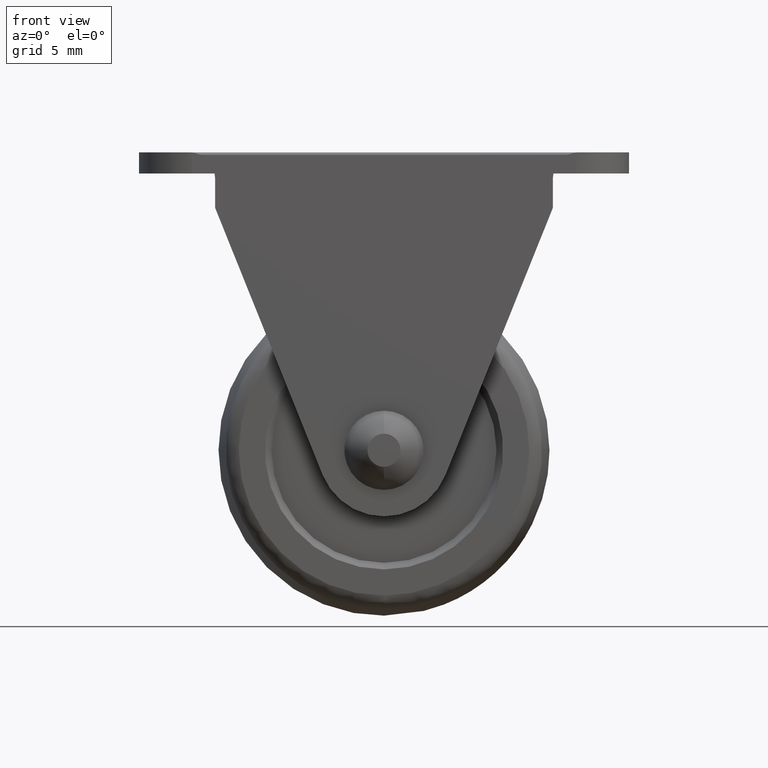
[diagram: clean part render]
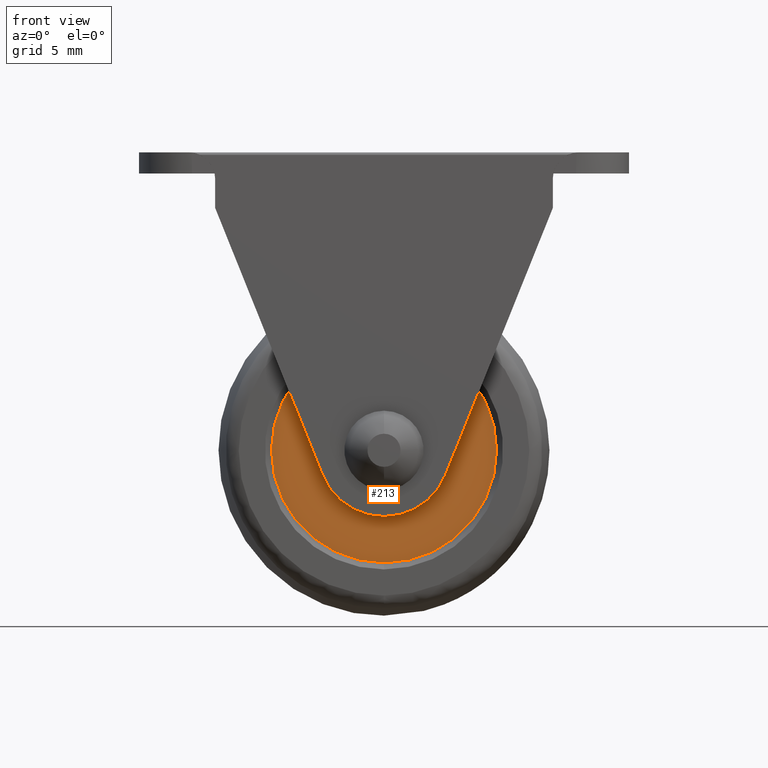
[diagram: same view with one face highlighted and labeled with its STEP entity id]
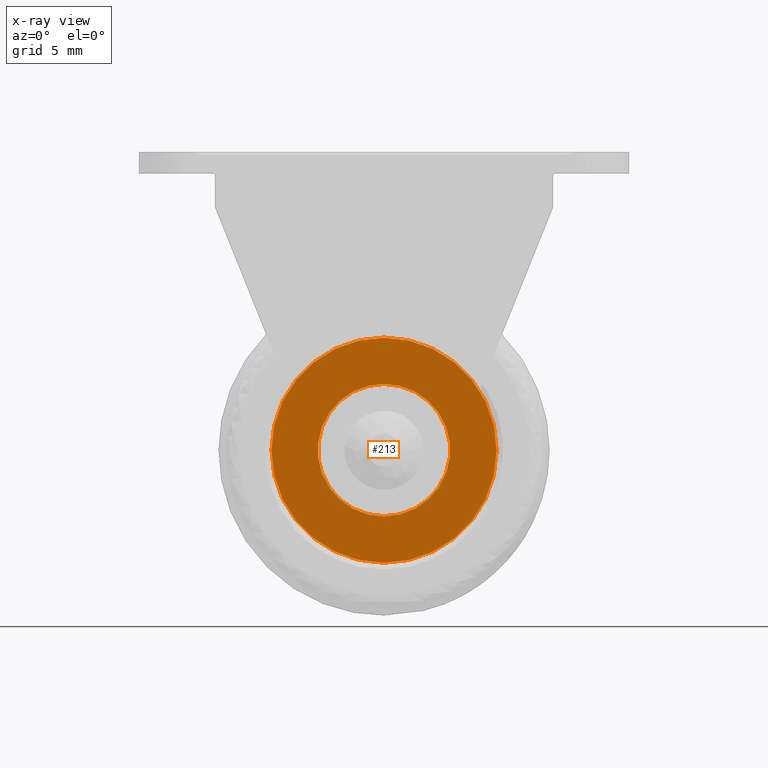
[diagram: x-ray of the same camera — body ghosted, the highlighted face saturated]
A machine part, front view. The second image highlights one B-rep face of the part: STEP entity #213.
The next image is the same camera in x-ray: the body ghosted, the highlighted face saturated — about 0% of this face is hidden behind the body in this view.
In plain terms, the highlighted planar face has unit normal (0, 1, 0).
Its self-contained STEP definition (entity closure, byte-faithful):
#213=ADVANCED_FACE('',(#891,#892),#890,.F.);
#890=PLANE('',#1590);
#891=FACE_OUTER_BOUND('',#1591,.T.);
#892=FACE_BOUND('',#1592,.T.);
#1587=CARTESIAN_POINT('',(-1.76669182372E+01,-5.50000000000E+00,-1.10500000000E+01));
#1588=DIRECTION('',(0.00000000000E+00,1.00000000000E+00,0.00000000000E+00));
#1589=DIRECTION('',(0.00000000000E+00,0.00000000000E+00,1.00000000000E+00));
#1590=AXIS2_PLACEMENT_3D('',#1587,#1588,#1589);
#1591=EDGE_LOOP('',(#2259,#2260));
#1592=EDGE_LOOP('',(#2261,#2262));
#2259=ORIENTED_EDGE('',*,*,#2525,.T.);
#2260=ORIENTED_EDGE('',*,*,#2526,.T.);
#2261=ORIENTED_EDGE('',*,*,#2527,.F.);
#2262=ORIENTED_EDGE('',*,*,#2528,.F.);
#2525=EDGE_CURVE('',#3679,#3680,#3681,.T.);
#2526=EDGE_CURVE('',#3680,#3679,#3687,.T.);
#2527=EDGE_CURVE('',#3693,#3694,#3695,.T.);
#2528=EDGE_CURVE('',#3694,#3693,#3701,.T.);
#3679=VERTEX_POINT('',#4669);
#3680=VERTEX_POINT('',#4670);
#3681=CIRCLE('',#4674,8.50000000000E+00);
#3687=CIRCLE('',#4678,8.50000000000E+00);
#3693=VERTEX_POINT('',#4679);
#3694=VERTEX_POINT('',#4680);
#3695=CIRCLE('',#4684,5.00000000000E+00);
#3701=CIRCLE('',#4688,5.00000000000E+00);
#4669=CARTESIAN_POINT('',(0.00000000000E+00,-5.50000000000E+00,-8.50000000000E+00));
#4670=CARTESIAN_POINT('',(8.88178419700E-16,-5.50000000000E+00,8.50000000000E+00));
#4671=CARTESIAN_POINT('',(0.00000000000E+00,-5.50000000000E+00,-8.06199264573E-16));
#4672=DIRECTION('',(0.00000000000E+00,-1.00000000000E+00,-0.00000000000E+00));
#4673=DIRECTION('',(-1.22460635382E-16,0.00000000000E+00,-1.00000000000E+00));
#4674=AXIS2_PLACEMENT_3D('',#4671,#4672,#4673);
#4675=CARTESIAN_POINT('',(0.00000000000E+00,-5.50000000000E+00,-8.06199264573E-16));
#4676=DIRECTION('',(0.00000000000E+00,-1.00000000000E+00,-0.00000000000E+00));
#4677=DIRECTION('',(-1.22460635382E-16,0.00000000000E+00,-1.00000000000E+00));
#4678=AXIS2_PLACEMENT_3D('',#4675,#4676,#4677);
#4679=CARTESIAN_POINT('',(2.96059473233E-16,-5.50000000000E+00,5.00000000000E+00));
#4680=CARTESIAN_POINT('',(0.00000000000E+00,-5.50000000000E+00,-5.00000000000E+00));
#4681=CARTESIAN_POINT('',(0.00000000000E+00,-5.50000000000E+00,-8.06199264573E-16));
#4682=DIRECTION('',(0.00000000000E+00,-1.00000000000E+00,-0.00000000000E+00));
#4683=DIRECTION('',(-1.22460635382E-16,0.00000000000E+00,-1.00000000000E+00));
#4684=AXIS2_PLACEMENT_3D('',#4681,#4682,#4683);
#4685=CARTESIAN_POINT('',(0.00000000000E+00,-5.50000000000E+00,-8.06199264573E-16));
#4686=DIRECTION('',(0.00000000000E+00,-1.00000000000E+00,-0.00000000000E+00));
#4687=DIRECTION('',(-1.22460635382E-16,0.00000000000E+00,-1.00000000000E+00));
#4688=AXIS2_PLACEMENT_3D('',#4685,#4686,#4687);